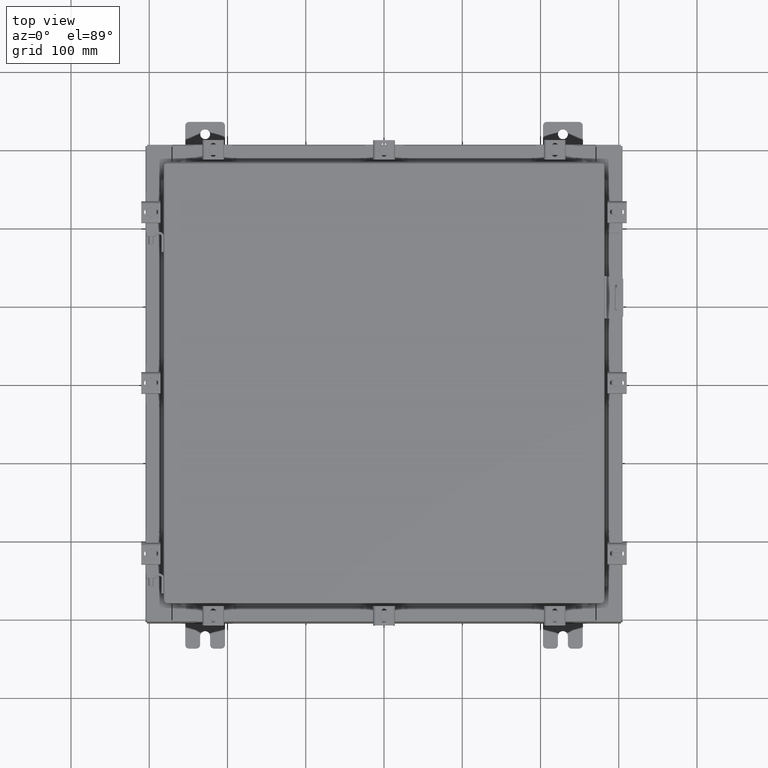
[diagram: clean part render]
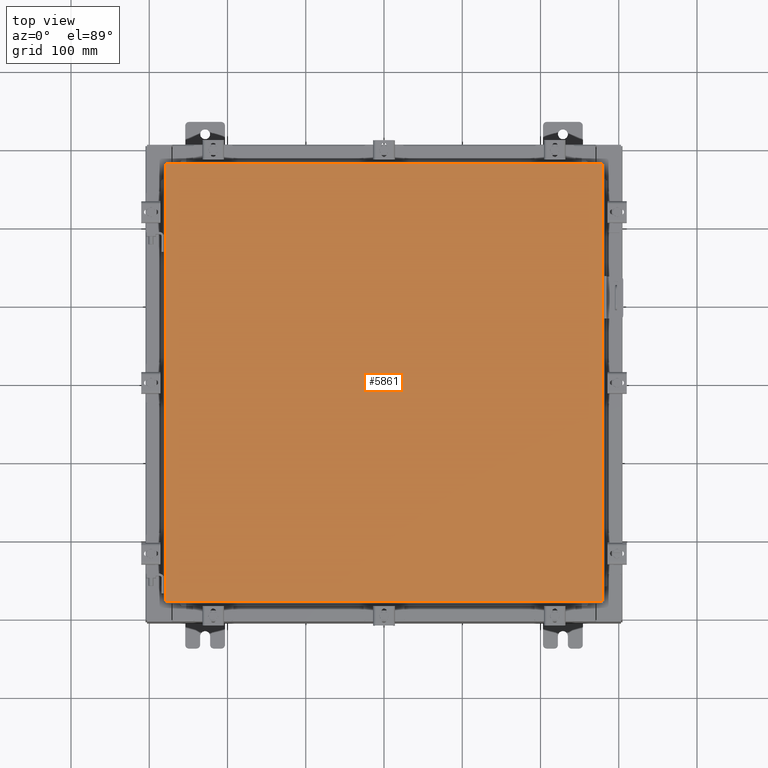
[diagram: same view with one face highlighted and labeled with its STEP entity id]
A machine part, top view. The second image highlights one B-rep face of the part: STEP entity #5861.
In plain terms, the highlighted planar face has unit normal (0, 0, -1).
Its self-contained STEP definition (entity closure, byte-faithful):
#367 = CARTESIAN_POINT ( 'NONE',  ( 11.00629999999999400, 11.00629999999999600, 0.0000000000000000000 ) ) ;
#1215 = CARTESIAN_POINT ( 'NONE',  ( -11.00630000000000300, -11.00630000000000100, 0.0000000000000000000 ) ) ;
#1524 = LINE ( 'NONE', #367, #14317 ) ;
#1694 = PLANE ( 'NONE',  #11272 ) ;
#3215 = ORIENTED_EDGE ( 'NONE', *, *, #20149, .T. ) ;
#3449 = LINE ( 'NONE', #1215, #16269 ) ;
#4700 = DIRECTION ( 'NONE',  ( 1.000000000000000000, -0.0000000000000000000, -0.0000000000000000000 ) ) ;
#4740 = CARTESIAN_POINT ( 'NONE',  ( -11.00630000000000300, 11.00629999999999600, 0.0000000000000000000 ) ) ;
#5405 = VERTEX_POINT ( 'NONE', #9339 ) ;
#5552 = DIRECTION ( 'NONE',  ( -1.000000000000000000, -0.0000000000000000000, -0.0000000000000000000 ) ) ;
#5861 = ADVANCED_FACE ( 'NONE', ( #11666 ), #1694, .F. ) ;
#5912 = DIRECTION ( 'NONE',  ( 0.0000000000000000000, 1.000000000000000000, 0.0000000000000000000 ) ) ;
#6187 = LINE ( 'NONE', #17990, #19588 ) ;
#6635 = CARTESIAN_POINT ( 'NONE',  ( 11.00629999999999400, -11.00630000000000100, 0.0000000000000000000 ) ) ;
#6942 = DIRECTION ( 'NONE',  ( 0.0000000000000000000, 0.0000000000000000000, -1.000000000000000000 ) ) ;
#7523 = VERTEX_POINT ( 'NONE', #6635 ) ;
#8381 = LINE ( 'NONE', #4740, #11967 ) ;
#9339 = CARTESIAN_POINT ( 'NONE',  ( -11.00630000000000300, 11.00629999999999600, 0.0000000000000000000 ) ) ;
#10152 = CARTESIAN_POINT ( 'NONE',  ( -11.00630000000000300, -11.00630000000000100, 0.0000000000000000000 ) ) ;
#11272 = AXIS2_PLACEMENT_3D ( 'NONE', #13892, #6942, #19162 ) ;
#11657 = EDGE_CURVE ( 'NONE', #15549, #5405, #1524, .T. ) ;
#11666 = FACE_OUTER_BOUND ( 'NONE', #16538, .T. ) ;
#11967 = VECTOR ( 'NONE', #13532, 39.37007874015748100 ) ;
#12371 = ORIENTED_EDGE ( 'NONE', *, *, #20351, .T. ) ;
#13532 = DIRECTION ( 'NONE',  ( 0.0000000000000000000, -1.000000000000000000, 0.0000000000000000000 ) ) ;
#13892 = CARTESIAN_POINT ( 'NONE',  ( 0.0000000000000000000, 0.0000000000000000000, 0.0000000000000000000 ) ) ;
#14232 = ORIENTED_EDGE ( 'NONE', *, *, #19165, .T. ) ;
#14317 = VECTOR ( 'NONE', #5552, 39.37007874015748100 ) ;
#15008 = ORIENTED_EDGE ( 'NONE', *, *, #11657, .T. ) ;
#15549 = VERTEX_POINT ( 'NONE', #15947 ) ;
#15947 = CARTESIAN_POINT ( 'NONE',  ( 11.00629999999999400, 11.00629999999999600, 0.0000000000000000000 ) ) ;
#16269 = VECTOR ( 'NONE', #4700, 39.37007874015748100 ) ;
#16538 = EDGE_LOOP ( 'NONE', ( #12371, #3215, #15008, #14232 ) ) ;
#17990 = CARTESIAN_POINT ( 'NONE',  ( 11.00629999999999400, -11.00630000000000100, 0.0000000000000000000 ) ) ;
#19162 = DIRECTION ( 'NONE',  ( -1.000000000000000000, 0.0000000000000000000, -0.0000000000000000000 ) ) ;
#19165 = EDGE_CURVE ( 'NONE', #5405, #21328, #8381, .T. ) ;
#19588 = VECTOR ( 'NONE', #5912, 39.37007874015748100 ) ;
#20149 = EDGE_CURVE ( 'NONE', #7523, #15549, #6187, .T. ) ;
#20351 = EDGE_CURVE ( 'NONE', #21328, #7523, #3449, .T. ) ;
#21328 = VERTEX_POINT ( 'NONE', #10152 ) ;